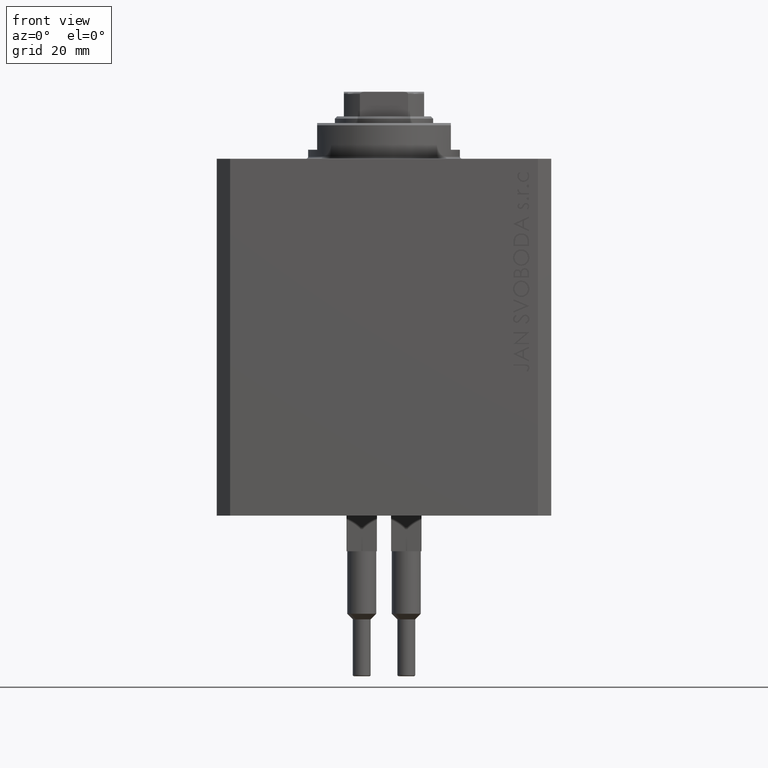
[diagram: clean part render]
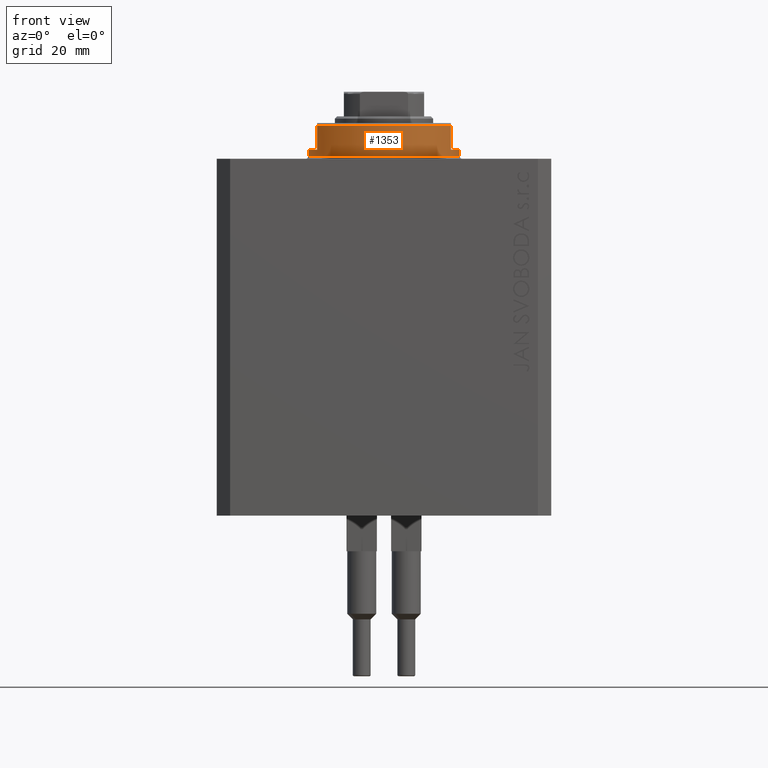
[diagram: same view with one face highlighted and labeled with its STEP entity id]
A machine part, front view. The second image highlights one B-rep face of the part: STEP entity #1353.
In plain terms, the highlighted cylindrical surface (partial cylindrical patch) has radius 17 mm, axis along (0, 0, -1).
Its self-contained STEP definition (entity closure, byte-faithful):
#314 = DIRECTION ( 'NONE',  ( -0.000000000000000000, -0.000000000000000000, 1.000000000000000000 ) ) ;
#420 = CARTESIAN_POINT ( 'NONE',  ( 0.000000000000000000, 0.000000000000000000, -7.500000000000007105 ) ) ;
#1271 = EDGE_CURVE ( 'NONE', #36437, #10684, #11197, .T. ) ;
#1353 = ADVANCED_FACE ( 'NONE', ( #20609 ), #32245, .T. ) ;
#1946 = DIRECTION ( 'NONE',  ( 0.000000000000000000, 0.000000000000000000, -1.000000000000000000 ) ) ;
#3128 = VECTOR ( 'NONE', #43936, 1000.000000000000000 ) ;
#3736 = ORIENTED_EDGE ( 'NONE', *, *, #1271, .T. ) ;
#3956 = CARTESIAN_POINT ( 'NONE',  ( 17.00000000000000000, 0.000000000000000000, -8.000000000000000000 ) ) ;
#5128 = CARTESIAN_POINT ( 'NONE',  ( -17.00000000000000000, 2.081899558550500280E-15, -2.000000000000000000 ) ) ;
#5318 = ORIENTED_EDGE ( 'NONE', *, *, #47847, .F. ) ;
#5623 = DIRECTION ( 'NONE',  ( 0.000000000000000000, 0.000000000000000000, -1.000000000000000000 ) ) ;
#5700 = ORIENTED_EDGE ( 'NONE', *, *, #7937, .F. ) ;
#5702 = CIRCLE ( 'NONE', #16568, 17.00000000000000000 ) ;
#7027 = CARTESIAN_POINT ( 'NONE',  ( 15.00000000000000000, -8.000000000000001776, -7.500000000000007105 ) ) ;
#7937 = EDGE_CURVE ( 'NONE', #24548, #44978, #5702, .T. ) ;
#8159 = ORIENTED_EDGE ( 'NONE', *, *, #39767, .T. ) ;
#8479 = EDGE_CURVE ( 'NONE', #10199, #43918, #27200, .T. ) ;
#8584 = CARTESIAN_POINT ( 'NONE',  ( 17.00000000000000000, 0.000000000000000000, -2.000000000000000000 ) ) ;
#9047 = CARTESIAN_POINT ( 'NONE',  ( 0.000000000000000000, 0.000000000000000000, -2.000000000000000000 ) ) ;
#10199 = VERTEX_POINT ( 'NONE', #8584 ) ;
#10684 = VERTEX_POINT ( 'NONE', #46600 ) ;
#11197 = CIRCLE ( 'NONE', #36876, 17.00000000000000000 ) ;
#12120 = EDGE_CURVE ( 'NONE', #23585, #33227, #27303, .T. ) ;
#12230 = ORIENTED_EDGE ( 'NONE', *, *, #24812, .T. ) ;
#12440 = DIRECTION ( 'NONE',  ( -0.000000000000000000, -0.000000000000000000, 1.000000000000000000 ) ) ;
#12764 = CARTESIAN_POINT ( 'NONE',  ( 14.99999999999999645, -8.000000000000003553, -2.000000000000000000 ) ) ;
#14168 = LINE ( 'NONE', #3956, #29916 ) ;
#15456 = CARTESIAN_POINT ( 'NONE',  ( 0.000000000000000000, 0.000000000000000000, -2.000000000000000000 ) ) ;
#15525 = EDGE_CURVE ( 'NONE', #44978, #10684, #37769, .T. ) ;
#16568 = AXIS2_PLACEMENT_3D ( 'NONE', #9047, #5623, #31828 ) ;
#17483 = LINE ( 'NONE', #20869, #32852 ) ;
#19314 = CARTESIAN_POINT ( 'NONE',  ( -17.00000000000000000, 2.081899558550500280E-15, -8.000000000000000000 ) ) ;
#20609 = FACE_OUTER_BOUND ( 'NONE', #24412, .T. ) ;
#20869 = CARTESIAN_POINT ( 'NONE',  ( 15.00000000000000000, -8.000000000000001776, -8.000000000000000000 ) ) ;
#22673 = AXIS2_PLACEMENT_3D ( 'NONE', #420, #26156, #41200 ) ;
#23058 = ORIENTED_EDGE ( 'NONE', *, *, #12120, .T. ) ;
#23211 = DIRECTION ( 'NONE',  ( -1.000000000000000000, 0.000000000000000000, 0.000000000000000000 ) ) ;
#23327 = AXIS2_PLACEMENT_3D ( 'NONE', #15456, #41661, #23211 ) ;
#23585 = VERTEX_POINT ( 'NONE', #44196 ) ;
#24412 = EDGE_LOOP ( 'NONE', ( #28012, #5700, #8159, #23058, #5318, #28805, #12230, #3736 ) ) ;
#24548 = VERTEX_POINT ( 'NONE', #45993 ) ;
#24812 = EDGE_CURVE ( 'NONE', #10199, #36437, #14168, .T. ) ;
#26156 = DIRECTION ( 'NONE',  ( 0.000000000000000000, 0.000000000000000000, 1.000000000000000000 ) ) ;
#26768 = DIRECTION ( 'NONE',  ( 1.000000000000000000, 0.000000000000000000, 0.000000000000000000 ) ) ;
#27200 = CIRCLE ( 'NONE', #23327, 17.00000000000000000 ) ;
#27303 = CIRCLE ( 'NONE', #22673, 17.00000000000000000 ) ;
#28012 = ORIENTED_EDGE ( 'NONE', *, *, #15525, .F. ) ;
#28805 = ORIENTED_EDGE ( 'NONE', *, *, #8479, .F. ) ;
#29916 = VECTOR ( 'NONE', #314, 1000.000000000000000 ) ;
#31828 = DIRECTION ( 'NONE',  ( -1.000000000000000000, 0.000000000000000000, 0.000000000000000000 ) ) ;
#32245 = CYLINDRICAL_SURFACE ( 'NONE', #36773, 17.00000000000000000 ) ;
#32852 = VECTOR ( 'NONE', #1946, 1000.000000000000000 ) ;
#33093 = CARTESIAN_POINT ( 'NONE',  ( 0.000000000000000000, 0.000000000000000000, -0.5000000000000004441 ) ) ;
#33227 = VERTEX_POINT ( 'NONE', #7027 ) ;
#33246 = CARTESIAN_POINT ( 'NONE',  ( -15.00000000000000000, -8.000000000000001776, -8.000000000000000000 ) ) ;
#34112 = DIRECTION ( 'NONE',  ( -0.000000000000000000, -0.000000000000000000, 1.000000000000000000 ) ) ;
#35635 = DIRECTION ( 'NONE',  ( 1.000000000000000000, 0.000000000000000000, 0.000000000000000000 ) ) ;
#36437 = VERTEX_POINT ( 'NONE', #37037 ) ;
#36773 = AXIS2_PLACEMENT_3D ( 'NONE', #43183, #12440, #35635 ) ;
#36876 = AXIS2_PLACEMENT_3D ( 'NONE', #33093, #36982, #26768 ) ;
#36982 = DIRECTION ( 'NONE',  ( -0.000000000000000000, -0.000000000000000000, -1.000000000000000000 ) ) ;
#37037 = CARTESIAN_POINT ( 'NONE',  ( 17.00000000000000000, 0.000000000000000000, -0.5000000000000004441 ) ) ;
#37769 = LINE ( 'NONE', #19314, #47461 ) ;
#39767 = EDGE_CURVE ( 'NONE', #24548, #23585, #44663, .T. ) ;
#41200 = DIRECTION ( 'NONE',  ( -1.000000000000000000, 0.000000000000000000, 0.000000000000000000 ) ) ;
#41661 = DIRECTION ( 'NONE',  ( 0.000000000000000000, 0.000000000000000000, -1.000000000000000000 ) ) ;
#43183 = CARTESIAN_POINT ( 'NONE',  ( 0.000000000000000000, 0.000000000000000000, -8.000000000000000000 ) ) ;
#43918 = VERTEX_POINT ( 'NONE', #12764 ) ;
#43936 = DIRECTION ( 'NONE',  ( 0.000000000000000000, 0.000000000000000000, -1.000000000000000000 ) ) ;
#44196 = CARTESIAN_POINT ( 'NONE',  ( -15.00000000000000000, -8.000000000000001776, -7.500000000000007105 ) ) ;
#44663 = LINE ( 'NONE', #33246, #3128 ) ;
#44978 = VERTEX_POINT ( 'NONE', #5128 ) ;
#45993 = CARTESIAN_POINT ( 'NONE',  ( -14.99999999999999645, -8.000000000000003553, -2.000000000000000000 ) ) ;
#46600 = CARTESIAN_POINT ( 'NONE',  ( -17.00000000000000000, 2.081899558550500280E-15, -0.5000000000000004441 ) ) ;
#47461 = VECTOR ( 'NONE', #34112, 1000.000000000000000 ) ;
#47847 = EDGE_CURVE ( 'NONE', #43918, #33227, #17483, .T. ) ;